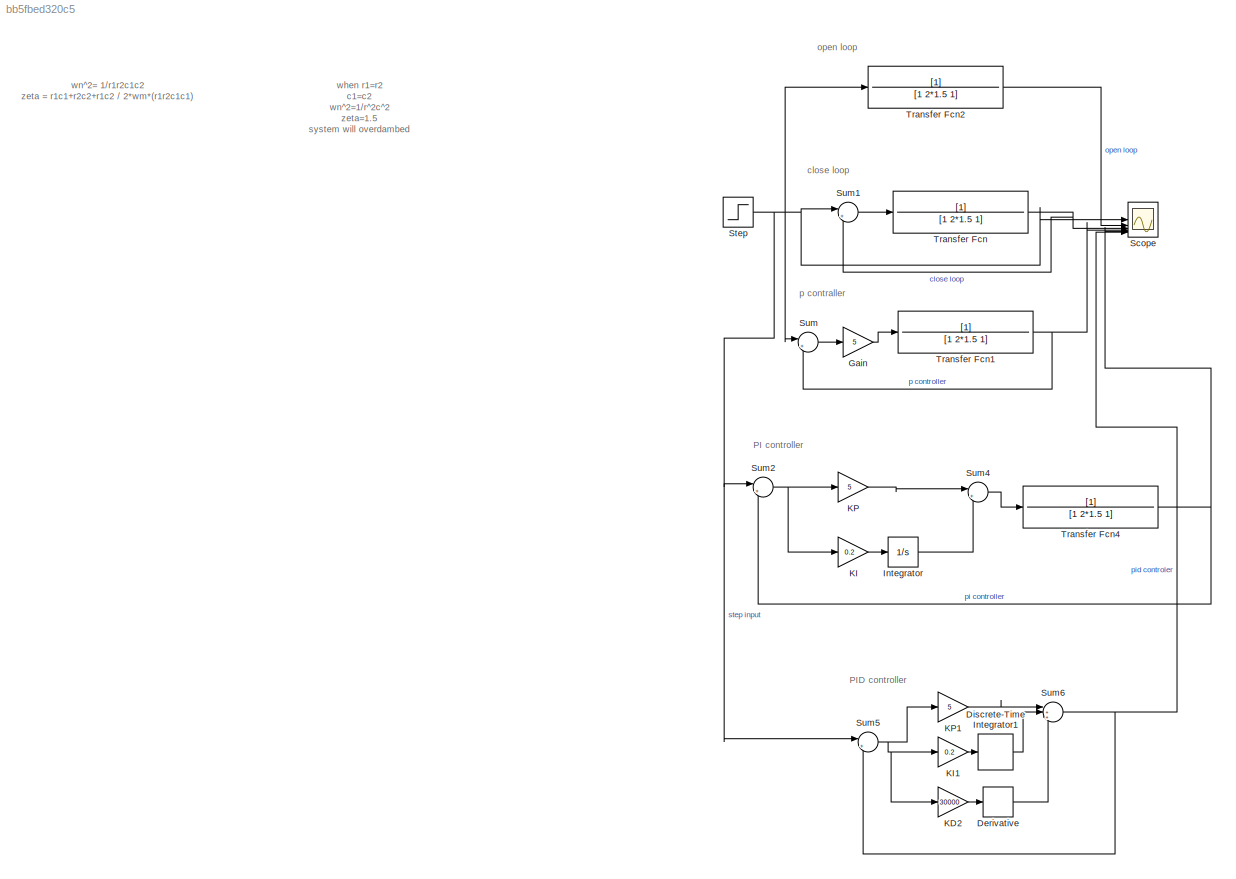
MODEL slx_bb5fbed320c5
KIND model
CONFIG AbsTol = auto
CONFIG EnableMultiTasking = off
CONFIG FixedStep = auto
CONFIG MaxStep = auto
CONFIG MinStep = auto
CONFIG RelTol = 1e-3
CONFIG SampleTimeConstraint = Unconstrained
CONFIG SolverName = VariableStepAuto
CONFIG StartTime = 0.0
CONFIG StopTime = 60.0
BLOCK [Derivative] Derivative
BLOCK [DiscreteIntegrator] Discrete-Time Integrator1
  ICPrevOutput = DiscIntNeverNeededParam
  ICPrevScaledInput = DiscIntNeverNeededParam
  InitialConditionSetting = Auto
  SampleTime = -1
BLOCK [Gain] Gain
  Gain = 5
BLOCK [Integrator] Integrator
BLOCK [Gain] KD2
  Gain = 30000
BLOCK [Gain] KI
  Gain = 0.2
BLOCK [Gain] KI1
  Gain = 0.2
BLOCK [Gain] KP
  Gain = 5
BLOCK [Gain] KP1
  Gain = 5
BLOCK [Scope] Scope
  Floating = off
  NumInputPorts = 6
  ScopeSpecificationString = Simulink.scopes.TimeScopeBlockCfg('CurrentConfiguration', extmgr.ConfigurationSet(extmgr.Configuration('Core','General UI',true),extmgr.Configuration('Core','Source UI',true),extmgr.Configuration('Sources','WiredSimulink',true),extmgr.Configuration('Visuals','Time Domain',true,'SerializedDisplays',{struct('MinYLimReal','-0.18936','MaxYLimReal','1.50728','YLabelReal','','MinYLimMag','0.00000','MaxY...<+2133ch>
BLOCK [Step] Step
  SampleTime = 0
BLOCK [Sum] Sum
  Inputs = |+-
BLOCK [Sum] Sum1
  Inputs = |+-
BLOCK [Sum] Sum2
  Inputs = |+-
BLOCK [Sum] Sum4
  Inputs = |++
BLOCK [Sum] Sum5
  Inputs = |+-
BLOCK [Sum] Sum6
  Inputs = |+++
BLOCK [TransferFcn] Transfer Fcn
  Denominator = [1 2*1.5 1]
BLOCK [TransferFcn] Transfer Fcn1
  Denominator = [1 2*1.5 1]
BLOCK [TransferFcn] Transfer Fcn2
  Denominator = [1 2*1.5 1]
BLOCK [TransferFcn] Transfer Fcn4
  Denominator = [1 2*1.5 1]
ANNOTATION (root): when r1=r2 c1=c2 wn^2=1/r^2c^2 zeta=1.5 system will overdambed
ANNOTATION (root): wn^2= 1/r1r2c1c2 zeta = r1c1+r2c2+r1c2 / 2*wm*(r1r2c1c1)
ANNOTATION (root): PI controller
ANNOTATION (root): PID controller
ANNOTATION (root): close loop
ANNOTATION (root): open loop
ANNOTATION (root): p contraller
LINE Derivative:1 -> Sum6:3
LINE Discrete-Time Integrator1:1 -> Sum6:2
LINE Gain:1 -> Transfer Fcn1:1
LINE Integrator:1 -> Sum4:2
LINE KD2:1 -> Derivative:1
LINE KI1:1 -> Discrete-Time Integrator1:1
LINE KI:1 -> Integrator:1
LINE KP1:1 -> Sum6:1
LINE KP:1 -> Sum4:1
NET Step:1 -> Scope:1, Sum1:1, Sum2:1, Sum5:1, Sum:1, Transfer Fcn2:1
LINE Sum1:1 -> Transfer Fcn:1
NET Sum2:1 -> KI:1, KP:1
LINE Sum4:1 -> Transfer Fcn4:1
NET Sum5:1 -> KD2:1, KI1:1, KP1:1
NET Sum6:1 -> Scope:6, Sum5:2
LINE Sum:1 -> Gain:1
NET Transfer Fcn1:1 -> Scope:4, Sum:2
LINE Transfer Fcn2:1 -> Scope:2
NET Transfer Fcn4:1 -> Scope:5, Sum2:2
NET Transfer Fcn:1 -> Scope:3, Sum1:2
note: NET lines group one-source signal fan-out (src -> all destinations, sorted); 1:1 wires keep LINE
